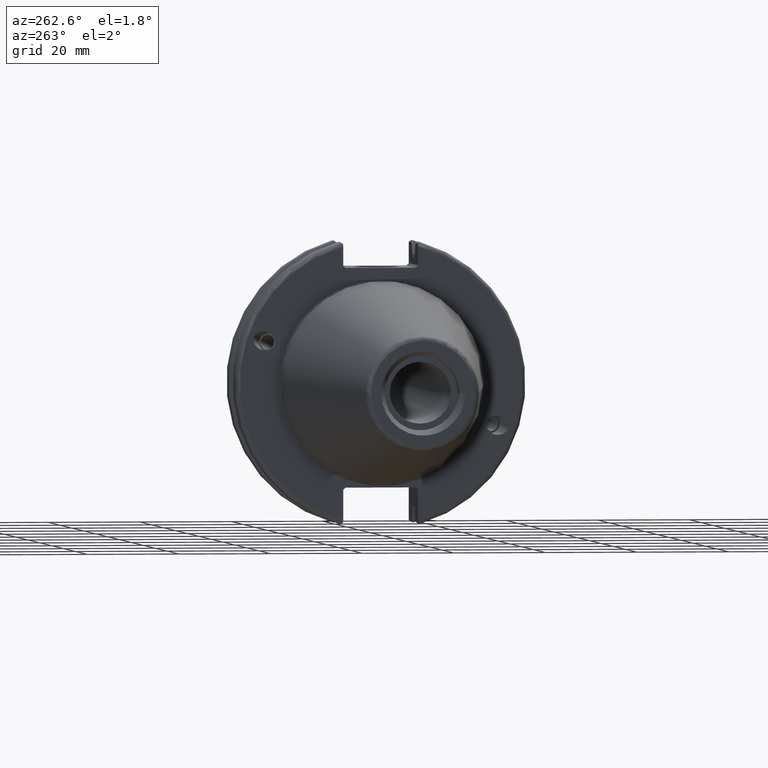
[diagram: clean part render]
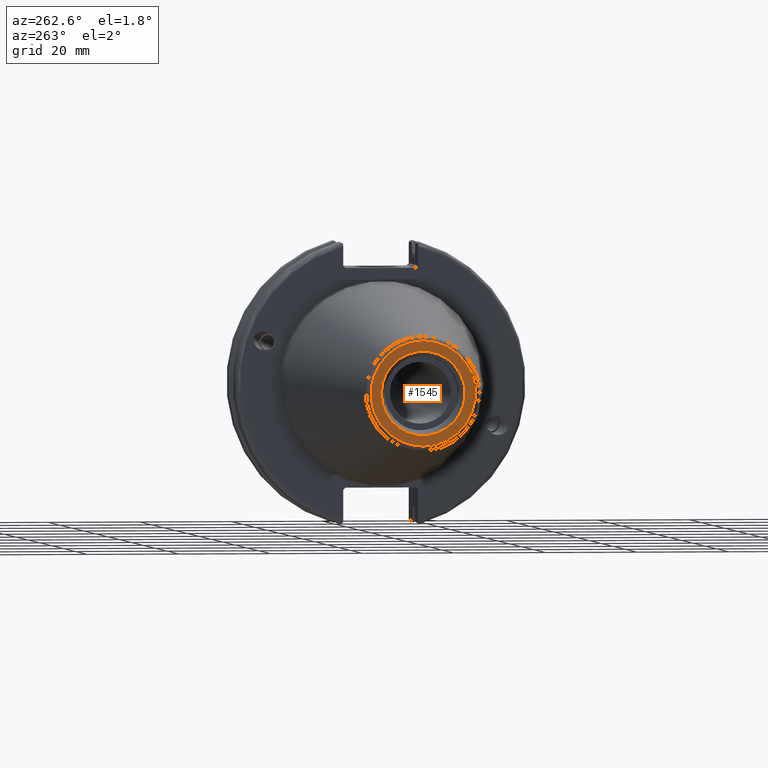
[diagram: same view with one face highlighted and labeled with its STEP entity id]
A machine part, auxiliary view. The second image highlights one B-rep face of the part: STEP entity #1545.
In plain terms, the highlighted planar face has unit normal (-1, 0, 0).
Its self-contained STEP definition (entity closure, byte-faithful):
#320=FACE_BOUND('',#512,.T.);
#341=PLANE('',#1733);
#413=FACE_OUTER_BOUND('',#511,.T.);
#511=EDGE_LOOP('',(#1346));
#512=EDGE_LOOP('',(#1347));
#605=CIRCLE('',#1732,11.4071305970304);
#606=CIRCLE('',#1734,9.15);
#762=VERTEX_POINT('',#3000);
#763=VERTEX_POINT('',#3004);
#974=EDGE_CURVE('',#762,#762,#605,.T.);
#975=EDGE_CURVE('',#763,#763,#606,.T.);
#1346=ORIENTED_EDGE('',*,*,#974,.F.);
#1347=ORIENTED_EDGE('',*,*,#975,.T.);
#1545=ADVANCED_FACE('',(#413,#320),#341,.T.);
#1732=AXIS2_PLACEMENT_3D('',#3002,#2118,#2119);
#1733=AXIS2_PLACEMENT_3D('',#3003,#2120,#2121);
#1734=AXIS2_PLACEMENT_3D('',#3005,#2122,#2123);
#2118=DIRECTION('center_axis',(1.,0.,0.));
#2119=DIRECTION('ref_axis',(0.,-1.,1.83697019872103E-16));
#2120=DIRECTION('center_axis',(-1.,0.,0.));
#2121=DIRECTION('ref_axis',(0.,0.,1.));
#2122=DIRECTION('center_axis',(1.,0.,0.));
#2123=DIRECTION('ref_axis',(0.,0.,-1.));
#3000=CARTESIAN_POINT('',(-68.25,-1.39697059731091E-15,11.4071305970304));
#3002=CARTESIAN_POINT('Origin',(-68.25,0.,0.));
#3003=CARTESIAN_POINT('Origin',(-68.25,12.271875,0.));
#3004=CARTESIAN_POINT('',(-68.25,-9.15,-1.12055182121983E-15));
#3005=CARTESIAN_POINT('Origin',(-68.25,0.,0.));